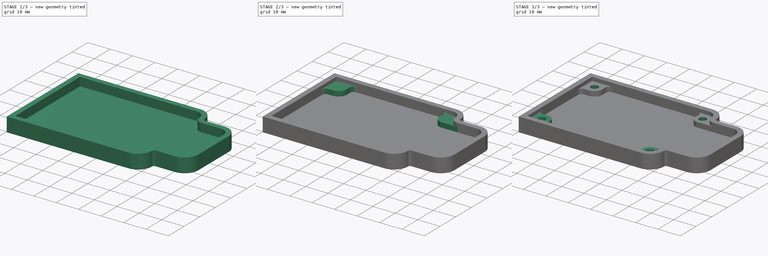
[diagram: build sequence overview — one tinted view per stage of 3, left to right]
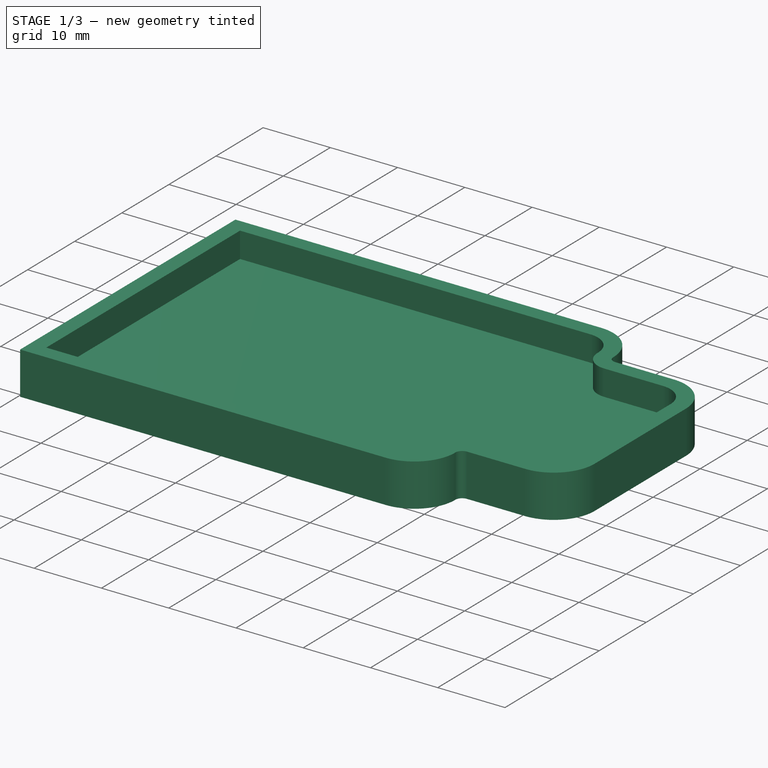
[diagram: stage 1 of 3 — iso view after this stage's code; geometry added in this stage tinted green]
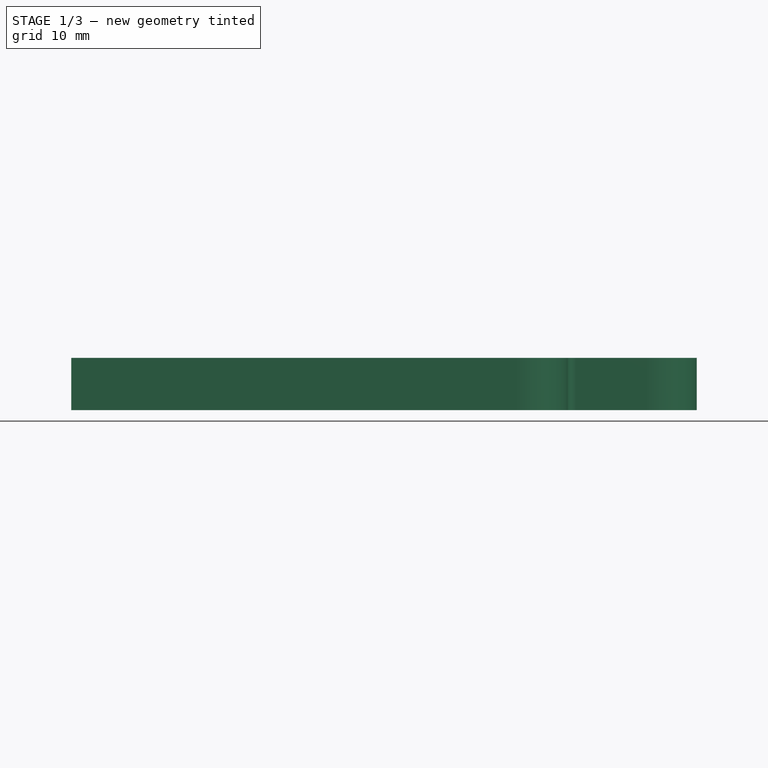
[diagram: stage 1 of 3 — front view after this stage's code; geometry added in this stage tinted green]
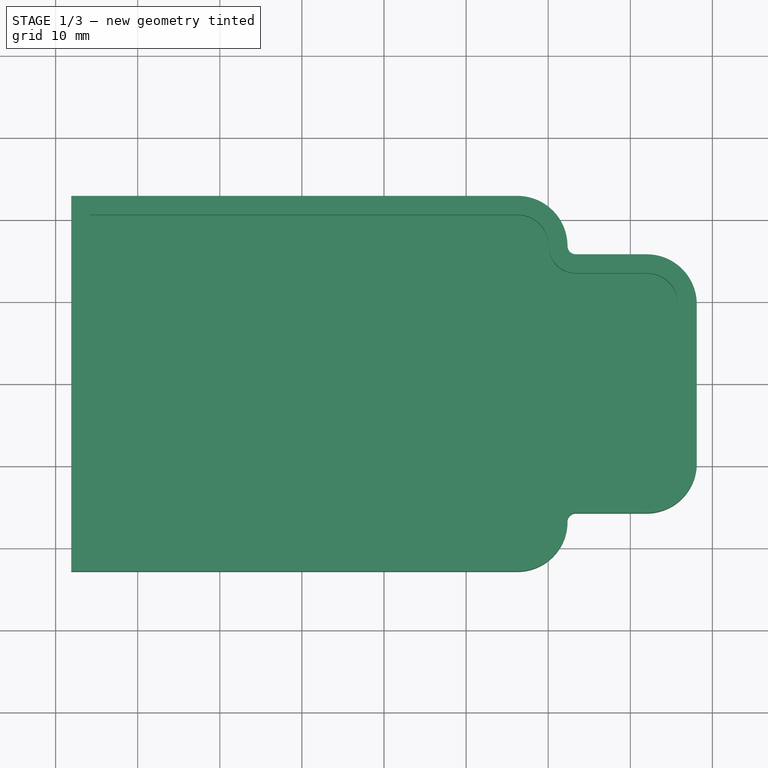
[diagram: stage 1 of 3 — top view after this stage's code; geometry added in this stage tinted green]
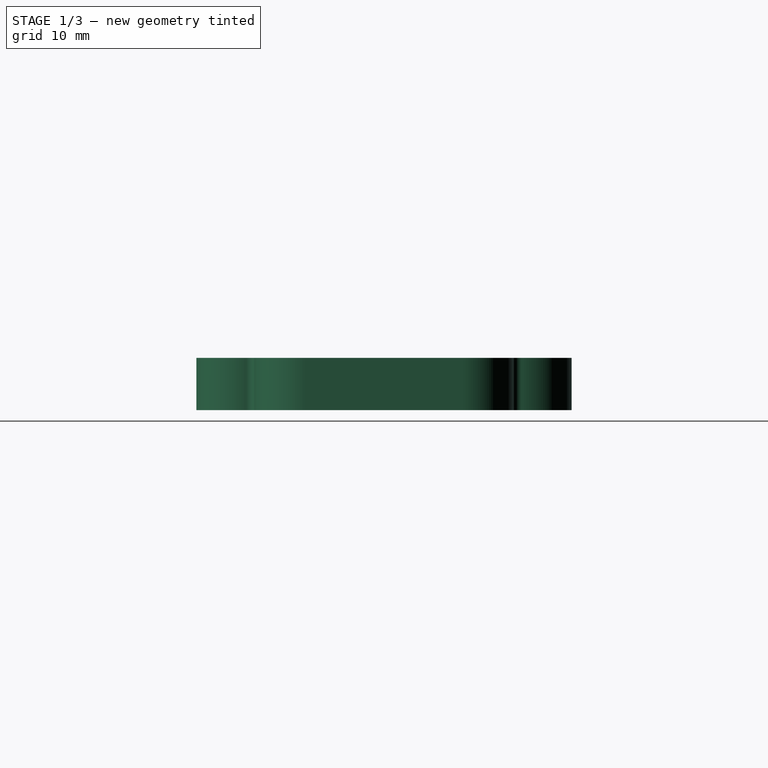
[diagram: stage 1 of 3 — right view after this stage's code; geometry added in this stage tinted green]
FCSTD DOCUMENT  (FreeCAD 0.19R21857 (Git))
Label: blinky_WB_partdesign
License: Other
LicenseURL: https://www.ohwr.org/project/cernohl
objects: Part::Feature×12, Sketcher::SketchObject×5, App::Part×4, App::Link×4, PartDesign::Pad×2, PartDesign::Pocket×2, PartDesign::CoordinateSystem×1, PartDesign::ShapeBinder×1, PartDesign::Mirrored×1, PartDesign::Body×1
note: 29 computed .brp shape members not serialized (recipe doc carries the construction recipe); baked Part::Feature solids carry a one-line shape summary decoded from their .brp

FEATURE [PartDesign::CoordinateSystem] Local_CS_d2eb
  AttacherType = Attacher::AttachEngine3D
FEATURE [Part::Feature] Pcb_d2eb
  Placement = pos=(-76.2,50.8,0) rot=(0,0,1;0rad)
  shape: bbox 71.12 x 40.64 x 1.6 mm, 83 faces (baked)
FEATURE [Sketcher::SketchObject] PCB_Sketch_d2eb
  sketch-geometry (12):
    g0: LineSegment StartX=32.004 StartY=13.208 StartZ=0 EndX=23.368 EndY=13.208 EndZ=0
    g1: LineSegment StartX=32.004 StartY=-13.208 StartZ=0 EndX=23.368 EndY=-13.208 EndZ=0
    g2: LineSegment StartX=-35.56 StartY=20.32 StartZ=0 EndX=16.256 EndY=20.32 EndZ=0
    g3: LineSegment StartX=-35.56 StartY=20.32 StartZ=0 EndX=-35.56 EndY=-20.32 EndZ=0
    g4: LineSegment StartX=-35.56 StartY=-20.32 StartZ=0 EndX=16.256 EndY=-20.32 EndZ=0
    g5: LineSegment StartX=35.56 StartY=9.652 StartZ=0 EndX=35.56 EndY=-9.652 EndZ=0
    g6: ArcOfCircle CenterX=32.004 CenterY=9.652 CenterZ=0 NormalX=0 NormalY=0 NormalZ=1 AngleXU=0 Radius=3.556 StartAngle=0 EndAngle=1.5708
    g7: ArcOfCircle CenterX=23.368 CenterY=16.764 CenterZ=0 NormalX=0 NormalY=0 NormalZ=1 AngleXU=0 Radius=3.556 StartAngle=3.14159 EndAngle=4.71239
    g8: ArcOfCircle CenterX=16.256 CenterY=16.764 CenterZ=0 NormalX=0 NormalY=0 NormalZ=1 AngleXU=0 Radius=3.556 StartAngle=0 EndAngle=1.5708
    g9: ArcOfCircle CenterX=32.004 CenterY=-9.652 CenterZ=0 NormalX=0 NormalY=0 NormalZ=1 AngleXU=0 Radius=3.556 StartAngle=4.71239 EndAngle=6.28319
    g10: ArcOfCircle CenterX=23.368 CenterY=-16.764 CenterZ=0 NormalX=0 NormalY=0 NormalZ=1 AngleXU=0 Radius=3.556 StartAngle=1.5708 EndAngle=3.14159
    g11: ArcOfCircle CenterX=16.256 CenterY=-16.764 CenterZ=0 NormalX=0 NormalY=0 NormalZ=1 AngleXU=0 Radius=3.556 StartAngle=4.71239 EndAngle=6.28319
  constraints (21):
    c: Horizontal(g0)
    c: Horizontal(g1)
    c: Horizontal(g2)
    c: Vertical(g3)
    c: Horizontal(g4)
    c: Vertical(g5)
    c: Coincident(g3,g4)
    c: Coincident(g2,g3)
    c: Tangent(g11,g4)
    c: Tangent(g2,g8)
    c: Tangent(g11,g10)
    c: Tangent(g8,g7)
    c: Tangent(g1,g10)
    c: Tangent(g0,g7)
    c: Tangent(g9,g1)
    c: Tangent(g6,g0)
    c: Tangent(g9,g5)
    c: Tangent(g6,g5)
    c: Equal(g0,g1)
    c: Equal(g2,g4)
    c: Equal(g6, g7-g10) x4
FEATURE [App::Part] Board_Geoms_d2eb
  Group = -> [Local_CS_d2eb,Pcb_d2eb,PCB_Sketch_d2eb]
  Origin = -> Origin
FEATURE [Part::Feature] Shape  label="BT1_3024-2_5F0FAC8A"
  Placement = pos=(-22.352,-1.27,11.43) rot=(0.57735,0.57735,0.57735;2.0944rad)
  shape: bbox 22.27 x 34.01 x 22.49 mm, 179 faces, 2 solids (baked)
FEATURE [Part::Feature] Shape001  label="C1_CP_Radial_D80mm_P350mm_5F0FACBC"
  Placement = pos=(-4.064,-11.684,0) rot=(0,0,1;1.5708rad)
  shape: bbox 10.23 x 9.886 x 10 mm, 54 faces (baked)
FEATURE [Part::Feature] Shape002  label="C2_C_Disc_D50mm_W25mm_P250mm_5F0FAD64"
  Placement = pos=(11.684,-6.096,0) rot=(0,0,1;1.5708rad)
  shape: bbox 2.5 x 5 x 7.1 mm, 6 faces (baked)
FEATURE [Part::Feature] Shape003  label="D1_LED_WS2812B_PLCC4_50x50mm_P32mm_5F0FAD76"
  Placement = pos=(25.4,8.128,0) rot=(0,0,1;0rad)
  shape: bbox 5.4 x 5 x 1.6 mm, 68 faces (baked)
FEATURE [App::Link] D1_LED_WS2812B_PLCC4_50x50mm_P32mm_5F0FAD76_ln_  label="D2_LED_WS2812B_PLCC4_50x50mm_P32mm_5F0FAD8C"
  LinkPlacement = pos=(25.4,0,0) rot=(0,0,1;0rad)
  LinkedObject = -> Shape003
  Placement = pos=(25.4,0,0) rot=(0,0,1;0rad)
FEATURE [App::Link] D1_LED_WS2812B_PLCC4_50x50mm_P32mm_5F0FAD76_ln_001  label="D3_LED_WS2812B_PLCC4_50x50mm_P32mm_5F0FADA2"
  LinkPlacement = pos=(25.4,-8.128,0) rot=(0,0,1;0rad)
  LinkedObject = -> Shape003
  Placement = pos=(25.4,-8.128,0) rot=(0,0,1;0rad)
FEATURE [Part::Feature] Shape004  label="J1_PinSocket_1x03_P254mm_Vertical_5F0FADF4"
  Placement = pos=(33.02,2.54,0) rot=(0,0,1;0rad)
  shape: bbox 2.54 x 7.62 x 10.1 mm, 103 faces (baked)
FEATURE [Part::Feature] Shape005  label="J2_PinHeader_2x03_P254mm_Vertical_5F0FAE0B"
  Placement = pos=(-2.032,11.684,0) rot=(0,0,1;1.5708rad)
  shape: bbox 7.62 x 5.08 x 11.54 mm, 130 faces (baked)
FEATURE [Part::Feature] Shape006  label="J3_PinSocket_1x02_P254mm_Vertical_5F0FAE27"
  Placement = pos=(-11.176,-12.7,0) rot=(0,0,1;3.14159rad)
  shape: bbox 2.54 x 5.08 x 10.1 mm, 72 faces (baked)
FEATURE [App::Link] J3_PinSocket_1x02_P254mm_Vertical_5F0FAE27_ln_  label="J4_PinSocket_1x02_P254mm_Vertical_5F0FAE3D"
  LinkPlacement = pos=(11.684,-12.7,0) rot=(0,0,1;3.14159rad)
  LinkedObject = -> Shape006
  Placement = pos=(11.684,-12.7,0) rot=(0,0,1;3.14159rad)
FEATURE [Part::Feature] Shape007  label="R1_R_Axial_DIN0207_L63mm_D25mm_P762mm_Horizontal_5F0FAE53"
  Placement = pos=(8.128,6.096,0) rot=(0,0,-1;1.5708rad)
  shape: bbox 2.706 x 8.418 x 5.603 mm, 15 faces (baked)
FEATURE [App::Link] R1_R_Axial_DIN0207_L63mm_D25mm_P762mm_Horizontal_5F0FAE53_ln_  label="R2_R_Axial_DIN0207_L63mm_D25mm_P762mm_Horizontal_5F0FAE69"
  LinkPlacement = pos=(-8.636,6.096,0) rot=(0,0,-1;1.5708rad)
  LinkedObject = -> Shape007
  Placement = pos=(-8.636,6.096,0) rot=(0,0,-1;1.5708rad)
FEATURE [Part::Feature] Shape008  label="SW1_SW_PUSH_6mm_h5mm_5F0FAE7F"
  Placement = pos=(-12.7,14.224,0) rot=(0,0,1;0rad)
  shape: bbox 7.174 x 6 x 8.5 mm, 105 faces (baked)
FEATURE [Part::Feature] Shape009  label="U1_DIP-8_W7.62mm_5F0FAE9D"
  Placement = pos=(-4.064,-1.524,0) rot=(0,0,1;1.5708rad)
  shape: bbox 9.27 x 7.874 x 6.98 mm, 148 faces (baked)
FEATURE [Part::Feature] Shape010  label="U2_SOT_223_5F0FAEB8"
  Placement = pos=(5.08,-10.668,0) rot=(0,0,-1;1.5708rad)
  shape: bbox 6.5 x 7 x 1.7 mm, 78 faces (baked)
FEATURE [App::Part] Top_d2eb
  Group = -> [Shape,Shape001,Shape002,Shape003,D1_LED_WS2812B_PLCC4_50x50mm_P32mm_5F0FAD76_ln_,D1_LED_WS2812B_PLCC4_50x50mm_P32mm_5F0FAD76_ln_001,Shape004,Shape005,Shape006,J3_PinSocket_1x02_P254mm_Vertical_5F0FAE27_ln_,Shape007,R1_R_Axial_DIN0207_L63mm_D25mm_P762mm_Horizontal_5F0FAE53_ln_,Shape008,Shape009,Shape010]
  Origin = -> Origin003
FEATURE [App::Part] Step_Models_d2eb
  Group = -> [Top_d2eb]
  Origin = -> Origin002
FEATURE [App::Part] Board_d2eb  label="tiny_blinky"
  Group = -> [Board_Geoms_d2eb,Step_Models_d2eb]
  Origin = -> Origin001
FEATURE [PartDesign::ShapeBinder] ShapeBinder
  Placement = pos=(-76.2,50.8,0) rot=(0,0,1;0rad)
  Support = -> [Pcb_d2eb]
  TraceSupport = false
FEATURE [Sketcher::SketchObject] Sketch
  ExternalGeometry = -> [ShapeBinder]
  MapMode = 5
  Support = -> [XY_Plane004]
  sketch-geometry (14):
    g0: LineSegment StartX=16.256 StartY=-22.86 StartZ=0 EndX=-38.1 EndY=-22.86 EndZ=0
    g1: LineSegment StartX=-38.1 StartY=-22.86 StartZ=0 EndX=-38.1 EndY=22.86 EndZ=0
    g2: LineSegment StartX=-38.1 StartY=22.86 StartZ=0 EndX=16.256 EndY=22.86 EndZ=0
    g3: ArcOfCircle CenterX=16.256 CenterY=16.764 CenterZ=0 NormalX=0 NormalY=0 NormalZ=1 AngleXU=0 Radius=6.096 StartAngle=-3.6e-15 EndAngle=1.5708
    g4: ArcOfCircle CenterX=23.368 CenterY=16.764 CenterZ=0 NormalX=0 NormalY=0 NormalZ=1 AngleXU=0 Radius=1.016 StartAngle=3.14159 EndAngle=4.71239
    g5: LineSegment StartX=23.368 StartY=15.748 StartZ=0 EndX=32.004 EndY=15.748 EndZ=0
    g6: ArcOfCircle CenterX=32.004 CenterY=9.652 CenterZ=0 NormalX=0 NormalY=0 NormalZ=1 AngleXU=0 Radius=6.096 StartAngle=1e-16 EndAngle=1.5708
    g7: LineSegment StartX=38.1 StartY=9.652 StartZ=0 EndX=38.1 EndY=-9.652 EndZ=0
    g8: ArcOfCircle CenterX=32.004 CenterY=-9.652 CenterZ=0 NormalX=0 NormalY=0 NormalZ=1 AngleXU=0 Radius=6.096 StartAngle=4.71239 EndAngle=6.28319
    g9: LineSegment StartX=32.004 StartY=-15.748 StartZ=0 EndX=23.368 EndY=-15.748 EndZ=0
    g10: ArcOfCircle CenterX=23.368 CenterY=-16.764 CenterZ=0 NormalX=0 NormalY=0 NormalZ=1 AngleXU=0 Radius=1.016 StartAngle=1.5708 EndAngle=3.14159
    g11: ArcOfCircle CenterX=16.256 CenterY=-16.764 CenterZ=0 NormalX=0 NormalY=0 NormalZ=1 AngleXU=0 Radius=6.096 StartAngle=4.71239 EndAngle=6.28319
    g12: LineSegment [constr] StartX=-35.56 StartY=20.32 StartZ=0 EndX=-38.1 EndY=20.32 EndZ=0
    g13: LineSegment [constr] StartX=-35.56 StartY=20.32 StartZ=0 EndX=-35.56 EndY=22.86 EndZ=0
  constraints (32):
    c: Horizontal(g0)
    c: Coincident(g0,g1)
    c: Vertical(g1)
    c: Coincident(g1,g2)
    c: Horizontal(g2)
    c: Tangent(g2,g3) = 1.5708
    c: Tangent(g3,g4) = 1.5708
    c: Tangent(g4,g5) = -1.5708
    c: Tangent(g5,g6) = 1.5708
    c: Vertical(g7)
    c: Tangent(g7,g8) = 1.5708
    c: Horizontal(g9)
    c: Tangent(g9,g10) = -1.5708
    c: Tangent(g10,g11) = 1.5708
    c: Tangent(g11,g0) = 1.5708
    c: Tangent(g8,g9) = 1.5708
    c: Tangent(g6,g7) = 1.5708
    c: Horizontal(g5)
    c: Coincident(g11,g-6)
    c: Coincident(g10,g-7)
    c: Coincident(g8,g-9)
    c: Coincident(g6,g-11)
    c: Coincident(g4,g-13)
    c: Coincident(g3,g-14)
    c: Coincident(g12,g-4)
    c: PointOnObject(g12,g1)
    c: Horizontal(g12)
    c: Coincident(g13,g12)
    c: PointOnObject(g13,g2)
    c: Vertical(g13)
    c: Equal(g13,g12)
    c: DistanceY(g13,g13) = 2.54
FEATURE [PartDesign::Pad] Pad
  Length = 6.35
  Length2 = 100.076
  Profile = -> Sketch
  Reversed = true
  Type = 0
FEATURE [Sketcher::SketchObject] Sketch001
  ExternalGeometry = -> [ShapeBinder]
  MapMode = 5
  Support = -> [Pad]
  sketch-geometry (14):
    g0: LineSegment StartX=16.256 StartY=-20.574 StartZ=0 EndX=-35.814 EndY=-20.574 EndZ=0
    g1: LineSegment StartX=-35.814 StartY=-20.574 StartZ=0 EndX=-35.814 EndY=20.574 EndZ=0
    g2: LineSegment StartX=-35.814 StartY=20.574 StartZ=0 EndX=16.256 EndY=20.574 EndZ=0
    g3: ArcOfCircle CenterX=16.256 CenterY=16.764 CenterZ=0 NormalX=0 NormalY=0 NormalZ=1 AngleXU=0 Radius=3.81 StartAngle=-2.7e-15 EndAngle=1.5708
    g4: ArcOfCircle CenterX=23.368 CenterY=16.764 CenterZ=0 NormalX=0 NormalY=0 NormalZ=1 AngleXU=0 Radius=3.302 StartAngle=3.14159 EndAngle=4.71239
    g5: LineSegment StartX=23.368 StartY=13.462 StartZ=0 EndX=32.004 EndY=13.462 EndZ=0
    g6: ArcOfCircle CenterX=32.004 CenterY=9.652 CenterZ=0 NormalX=0 NormalY=0 NormalZ=1 AngleXU=0 Radius=3.81 StartAngle=2e-16 EndAngle=1.5708
    g7: LineSegment StartX=35.814 StartY=9.652 StartZ=0 EndX=35.814 EndY=-9.652 EndZ=0
    g8: ArcOfCircle CenterX=32.004 CenterY=-9.652 CenterZ=0 NormalX=0 NormalY=0 NormalZ=1 AngleXU=0 Radius=3.81 StartAngle=4.71239 EndAngle=6.28319
    g9: LineSegment StartX=32.004 StartY=-13.462 StartZ=0 EndX=23.368 EndY=-13.462 EndZ=0
    g10: ArcOfCircle CenterX=23.368 CenterY=-16.764 CenterZ=0 NormalX=0 NormalY=0 NormalZ=1 AngleXU=0 Radius=3.302 StartAngle=1.5708 EndAngle=3.14159
    g11: ArcOfCircle CenterX=16.256 CenterY=-16.764 CenterZ=0 NormalX=0 NormalY=0 NormalZ=1 AngleXU=0 Radius=3.81 StartAngle=4.71239 EndAngle=6.28319
    g12: LineSegment [constr] StartX=-35.56 StartY=20.32 StartZ=0 EndX=-35.814 EndY=20.32 EndZ=0
    g13: LineSegment [constr] StartX=-35.56 StartY=20.32 StartZ=0 EndX=-35.56 EndY=20.574 EndZ=0
  constraints (32):
    c: Horizontal(g0)
    c: Vertical(g1)
    c: Horizontal(g2)
    c: Tangent(g2,g3) = 1.5708
    c: Tangent(g3,g4) = 1.5708
    c: Horizontal(g5)
    c: Tangent(g5,g6) = 1.5708
    c: Vertical(g7)
    c: Tangent(g7,g8) = 1.5708
    c: Tangent(g8,g9) = 1.5708
    c: Tangent(g6,g7) = 1.5708
    c: Tangent(g4,g5) = -1.5708
    c: Coincident(g8,g-9)
    c: Coincident(g6,g-11)
    c: Coincident(g4,g-13)
    c: Coincident(g3,g-14)
    c: Equal(g-8,g9)
    c: Coincident(g10,g-7)
    c: Coincident(g11,g-6)
    c: Tangent(g10,g9) = -1.5708
    c: Tangent(g11,g10) = 1.5708
    c: Tangent(g0,g11) = 1.5708
    c: Coincident(g1,g0)
    c: Coincident(g2,g1)
    c: Coincident(g12,g-4)
    c: Coincident(g13,g12)
    c: PointOnObject(g13,g2)
    c: Vertical(g13)
    c: PointOnObject(g12,g1)
    c: Horizontal(g12)
    c: Equal(g12,g13)
    c: DistanceY(g13,g13) = 0.254
FEATURE [PartDesign::Pocket] Pocket
  BaseFeature = -> Pad
  Length = 3.81
  Length2 = 100.076
  Profile = -> Sketch001
  Type = 0
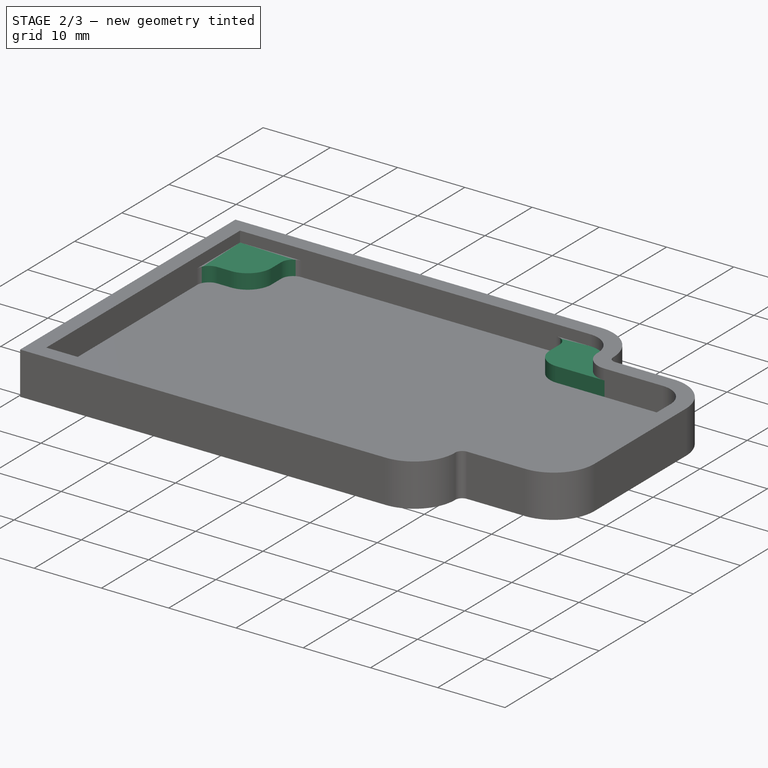
[diagram: stage 2 of 3 — iso view after this stage's code; geometry added in this stage tinted green]
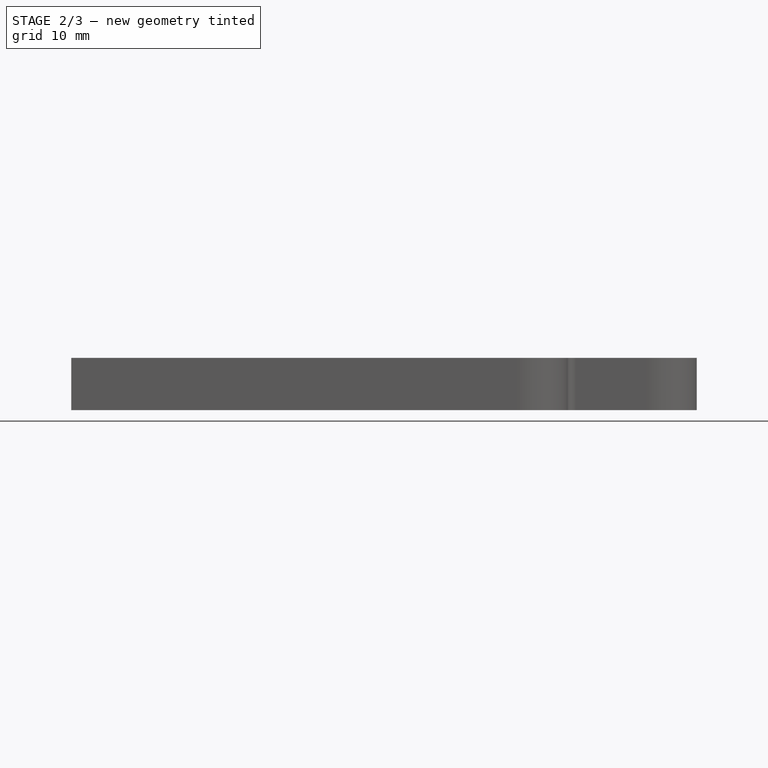
[diagram: stage 2 of 3 — front view after this stage's code; geometry added in this stage tinted green]
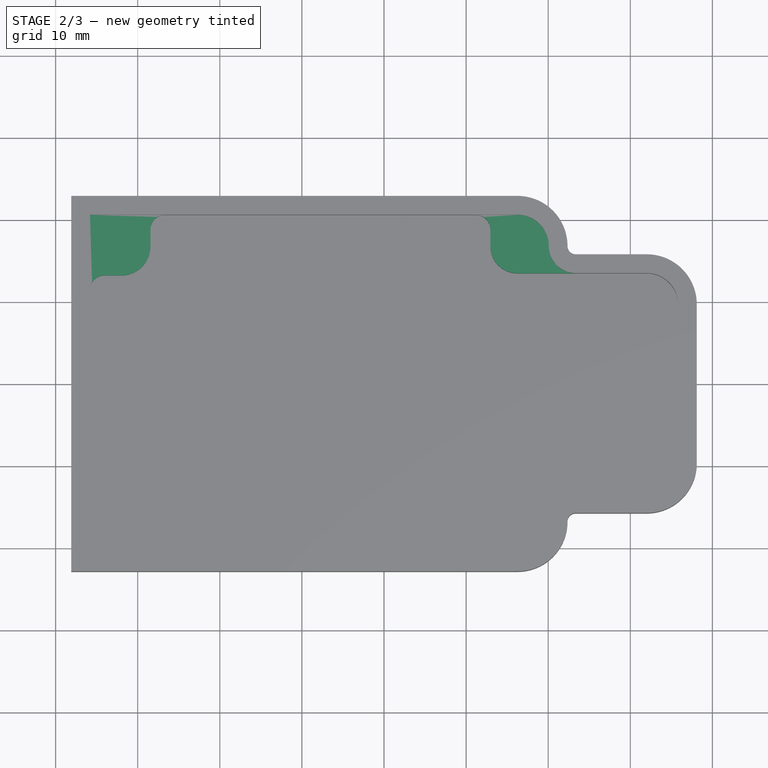
[diagram: stage 2 of 3 — top view after this stage's code; geometry added in this stage tinted green]
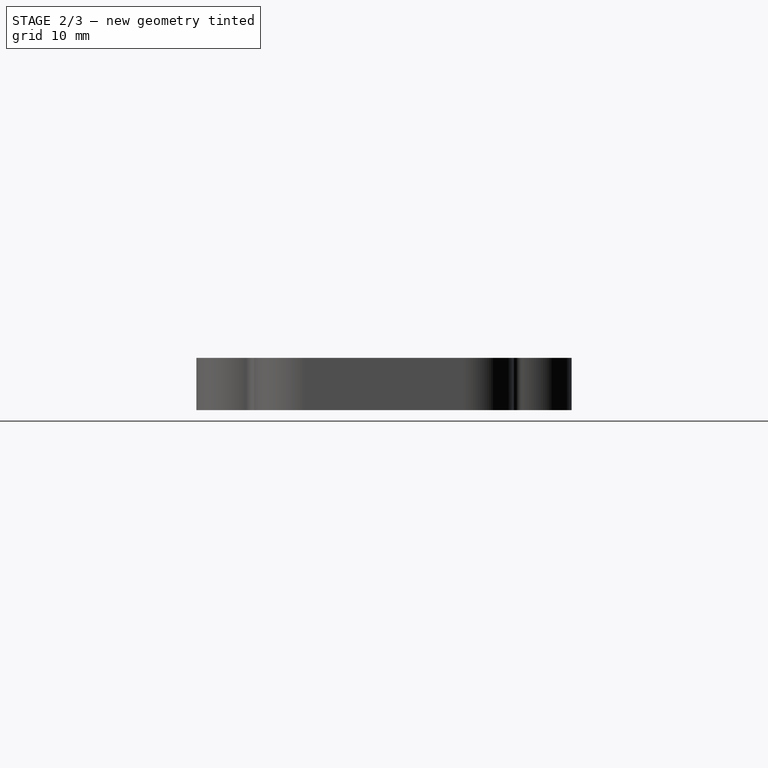
[diagram: stage 2 of 3 — right view after this stage's code; geometry added in this stage tinted green]
FEATURE [Sketcher::SketchObject] Sketch002
  ExternalGeometry = -> [ShapeBinder,Pocket]
  MapMode = 5
  Placement = pos=(0,0,-3.81) rot=(0,0,1;0rad)
  Support = -> [Pocket]
  sketch-geometry (14):
    g0: LineSegment StartX=-26.67 StartY=20.574 StartZ=0 EndX=-35.814 EndY=20.574 EndZ=0
    g1: LineSegment StartX=-35.814 StartY=20.574 StartZ=0 EndX=-35.814 EndY=11.43 EndZ=0
    g2: ArcOfCircle CenterX=-34.036 CenterY=11.43 CenterZ=0 NormalX=0 NormalY=0 NormalZ=1 AngleXU=0 Radius=1.778 StartAngle=1.5708 EndAngle=3.14159
    g3: LineSegment StartX=-34.036 StartY=13.208 StartZ=0 EndX=-32.004 EndY=13.208 EndZ=0
    g4: ArcOfCircle CenterX=-32.004 CenterY=16.764 CenterZ=0 NormalX=0 NormalY=0 NormalZ=1 AngleXU=0 Radius=3.556 StartAngle=4.71239 EndAngle=6.28319
    g5: LineSegment StartX=-28.448 StartY=16.764 StartZ=0 EndX=-28.448 EndY=18.796 EndZ=0
    g6: ArcOfCircle CenterX=-26.67 CenterY=18.796 CenterZ=0 NormalX=0 NormalY=0 NormalZ=1 AngleXU=0 Radius=1.778 StartAngle=1.5708 EndAngle=3.14159
    g7: LineSegment StartX=23.368 StartY=13.462 StartZ=0 EndX=16.256 EndY=13.462 EndZ=0
    g8: ArcOfCircle CenterX=16.256 CenterY=16.764 CenterZ=0 NormalX=0 NormalY=0 NormalZ=1 AngleXU=0 Radius=3.302 StartAngle=3.14159 EndAngle=4.71239
    g9: LineSegment StartX=12.954 StartY=16.764 StartZ=0 EndX=12.954 EndY=18.796 EndZ=0
    g10: ArcOfCircle CenterX=11.176 CenterY=18.796 CenterZ=0 NormalX=0 NormalY=0 NormalZ=1 AngleXU=0 Radius=1.778 StartAngle=6e-16 EndAngle=1.5708
    g11: LineSegment StartX=11.176 StartY=20.574 StartZ=0 EndX=16.256 EndY=20.574 EndZ=0
    g12: ArcOfCircle CenterX=16.256 CenterY=16.764 CenterZ=0 NormalX=0 NormalY=0 NormalZ=1 AngleXU=0 Radius=3.81 StartAngle=1.8e-15 EndAngle=1.5708
    g13: ArcOfCircle CenterX=23.368 CenterY=16.764 CenterZ=0 NormalX=0 NormalY=0 NormalZ=1 AngleXU=0 Radius=3.302 StartAngle=3.14159 EndAngle=4.71239
  constraints (34):
    c: Horizontal(g0)
    c: Coincident(g0,g1)
    c: Vertical(g1)
    c: Horizontal(g3)
    c: Tangent(g3,g4) = -1.5708
    c: Coincident(g4,g5)
    c: Vertical(g5)
    c: Tangent(g5,g6) = 1.5708
    c: Equal(g6,g2)
    c: Coincident(g4,g-6)
    c: Tangent(g2,g3) = 1.5708
    c: Tangent(g2,g1) = -1.5708
    c: Tangent(g0,g6) = -1.5708
    c: Equal(g3,g5)
    c: PointOnObject(g1,g-7)
    c: PointOnObject(g0,g-8)
    c: Radius(g4) = 3.556
    c: Radius(g6) = 1.778
    c: Coincident(g-9,g7)
    c: Horizontal(g7)
    c: Tangent(g7,g8) = 1.5708
    c: Vertical(g9)
    c: Tangent(g9,g10) = -1.5708
    c: PointOnObject(g10,g-8)
    c: Tangent(g-8,g10)
    c: Tangent(g8,g9) = 1.5708
    c: Coincident(g8,g-5)
    c: Equal(g6,g10)
    c: Coincident(g10,g11)
    c: Tangent(g11,g12) = 1.5708
    c: Coincident(g12,g-10)
    c: Tangent(g12,g13) = 1.5708
    c: Coincident(g13,g7)
    c: Coincident(g8,g12)
FEATURE [PartDesign::Pad] Pad001
  BaseFeature = -> Pocket
  Length = 2.2098
  Length2 = 100.076
  Profile = -> Sketch002
  Type = 0
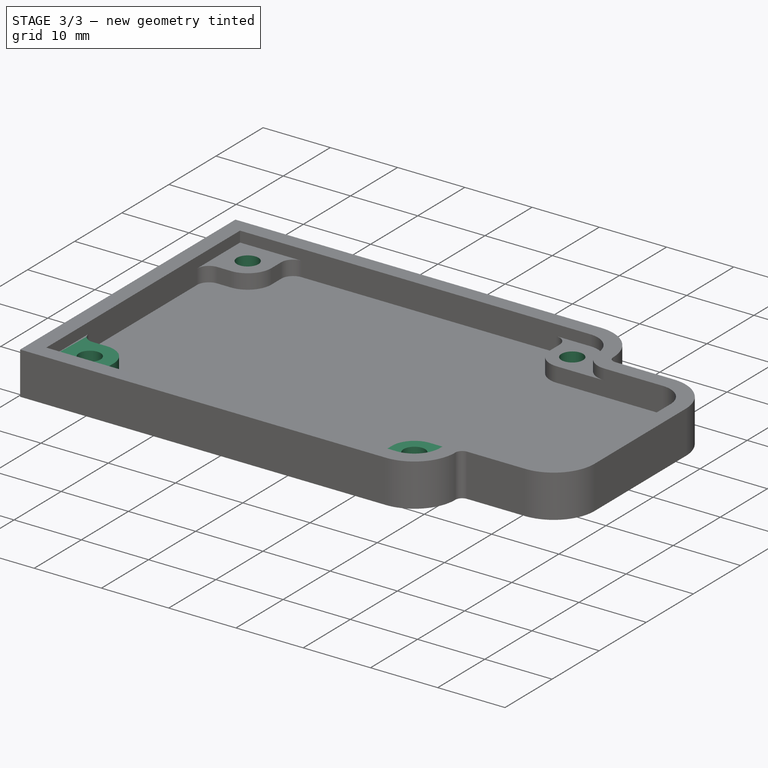
[diagram: stage 3 of 3 — iso view after this stage's code; geometry added in this stage tinted green]
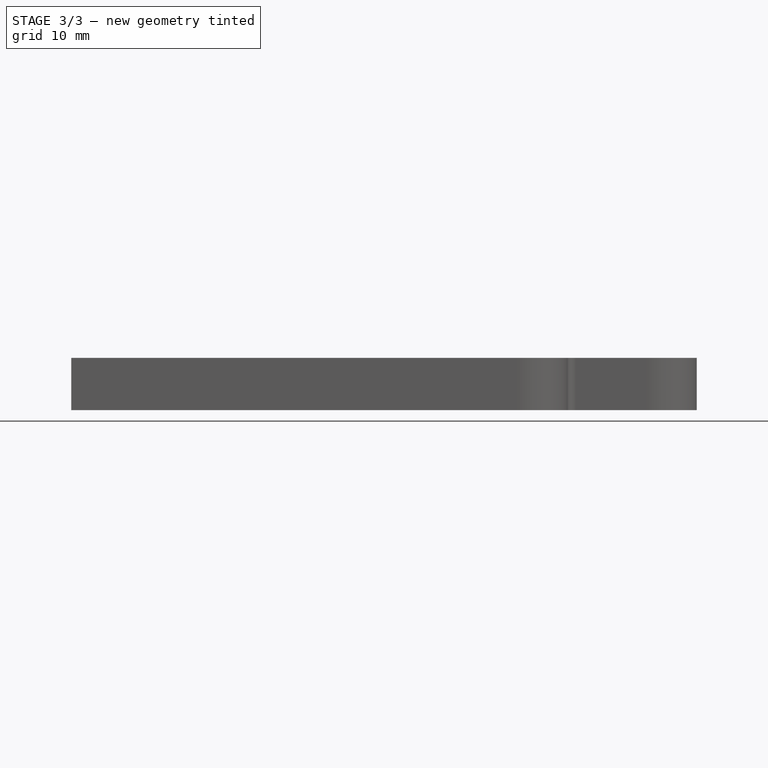
[diagram: stage 3 of 3 — front view after this stage's code; geometry added in this stage tinted green]
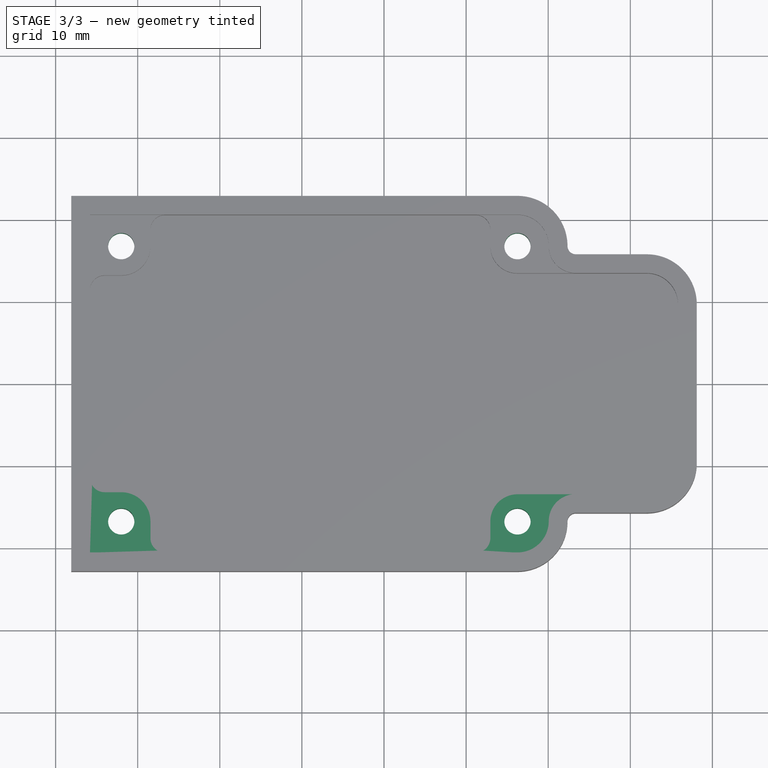
[diagram: stage 3 of 3 — top view after this stage's code; geometry added in this stage tinted green]
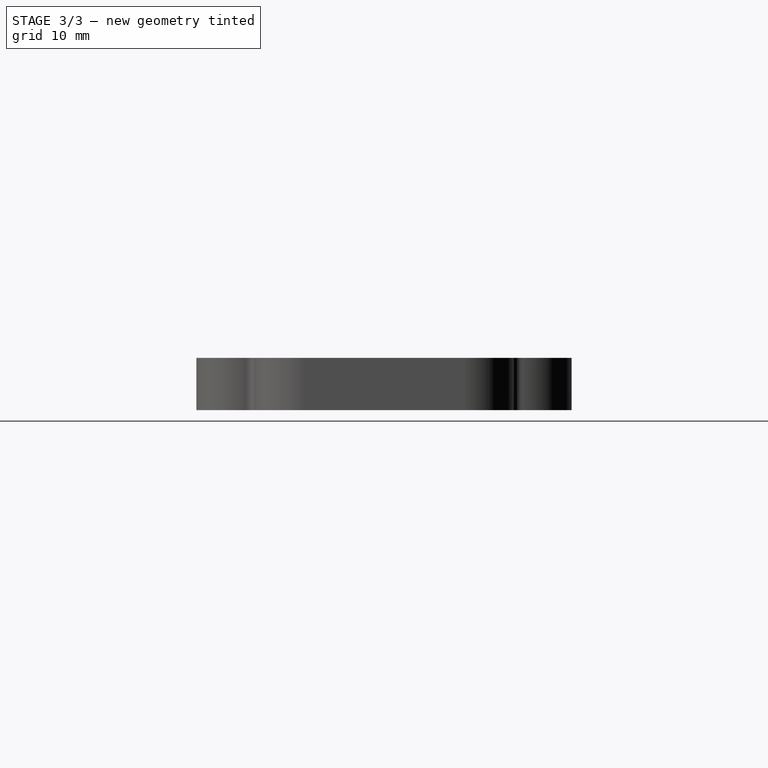
[diagram: stage 3 of 3 — right view after this stage's code; geometry added in this stage tinted green]
FEATURE [PartDesign::Mirrored] Mirrored
  BaseFeature = -> Pad001
  MirrorPlane = -> Sketch002 [H_Axis]
  Originals = -> [Pad001]
FEATURE [Sketcher::SketchObject] Sketch003
  ExternalGeometry = -> [ShapeBinder]
  MapMode = 5
  Placement = pos=(0,0,-1.6002) rot=(0,0,1;0rad)
  Support = -> [Mirrored]
  sketch-geometry (4):
    g0: Circle CenterX=-32.004 CenterY=-16.764 CenterZ=0 NormalX=0 NormalY=0 NormalZ=1 AngleXU=0 Radius=1.6
    g1: Circle CenterX=16.256 CenterY=-16.764 CenterZ=0 NormalX=0 NormalY=0 NormalZ=1 AngleXU=0 Radius=1.6
    g2: Circle CenterX=16.256 CenterY=16.764 CenterZ=0 NormalX=0 NormalY=0 NormalZ=1 AngleXU=0 Radius=1.6
    g3: Circle CenterX=-32.004 CenterY=16.764 CenterZ=0 NormalX=0 NormalY=0 NormalZ=1 AngleXU=0 Radius=1.6
  constraints (8):
    c: Coincident(g0,g-5)
    c: Coincident(g1,g-6)
    c: Coincident(g2,g-4)
    c: Coincident(g3,g-3)
    c: Equal(g3,g2)
    c: Equal(g2,g1)
    c: Equal(g1,g0)
    c: Equal(g-3,g3)
FEATURE [PartDesign::Pocket] Pocket001
  BaseFeature = -> Mirrored
  Length = 5.08
  Length2 = 100.076
  Profile = -> Sketch003
  Type = 1
FEATURE [PartDesign::Body] Body
  Group = -> [Sketch,ShapeBinder,Pad,Sketch001,Pocket,Sketch002,Pad001,Mirrored,Sketch003,Pocket001]
  Origin = -> Origin004
  Tip = -> Pocket001
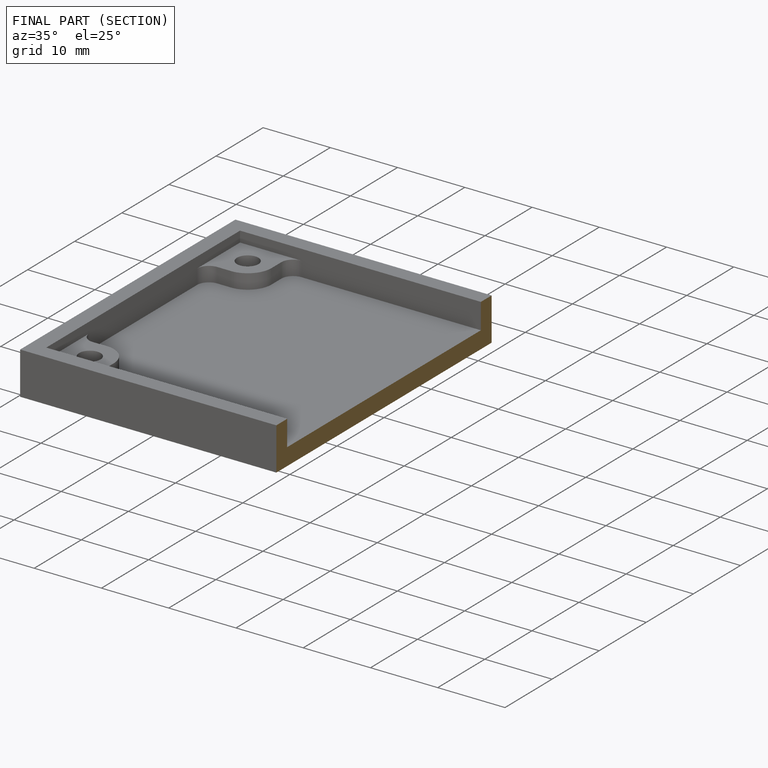
[diagram: finished part — half-section view (interior)]
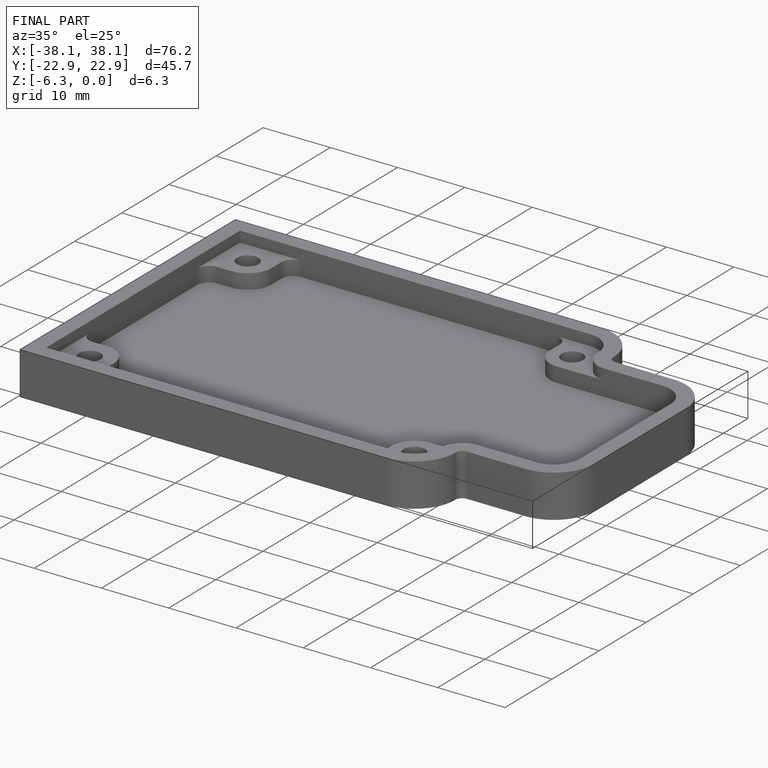
[diagram: finished part — iso view with bounding-box wireframe]
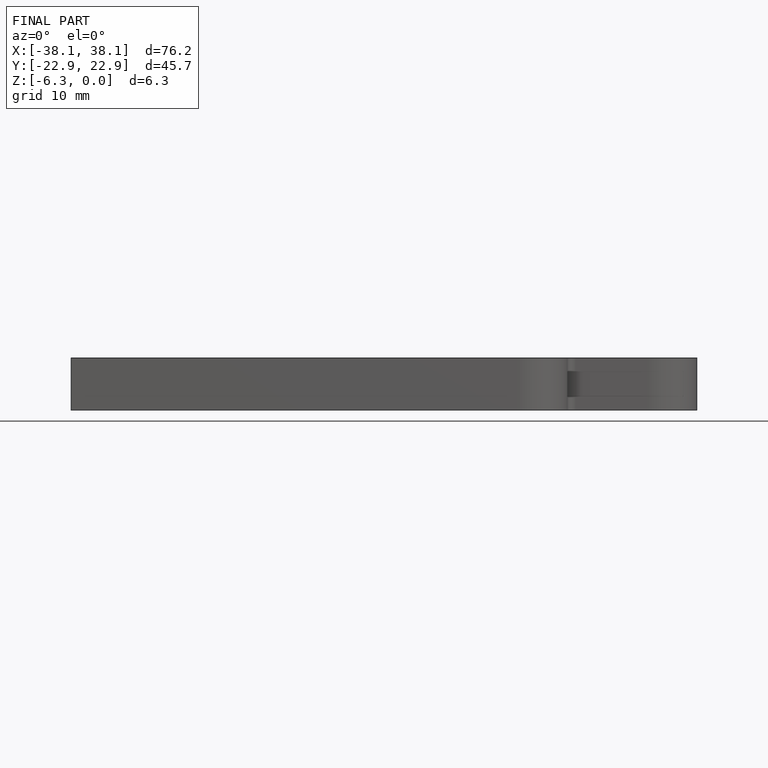
[diagram: finished part — front view with bounding-box wireframe]
